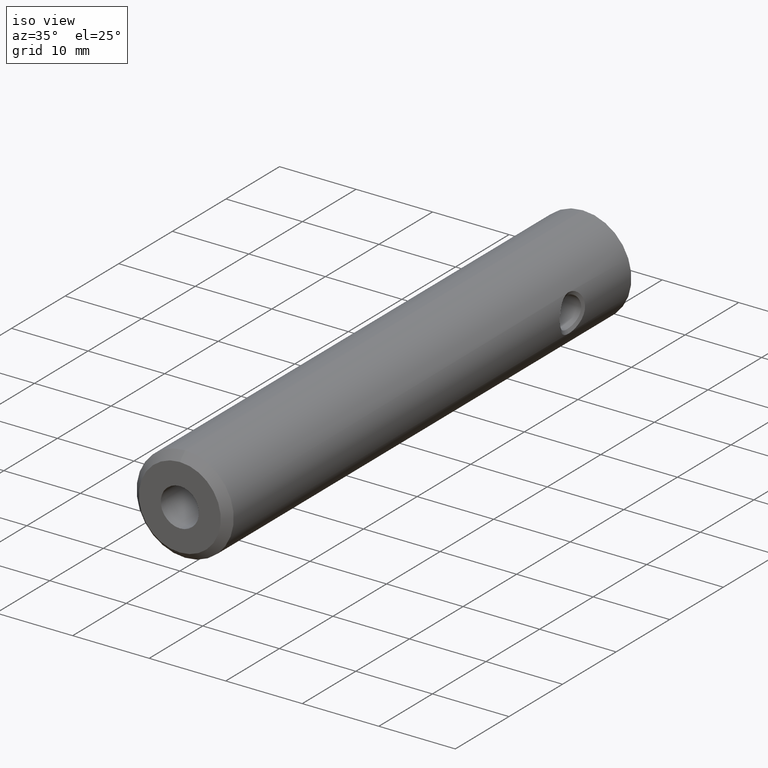
[diagram: clean part render]
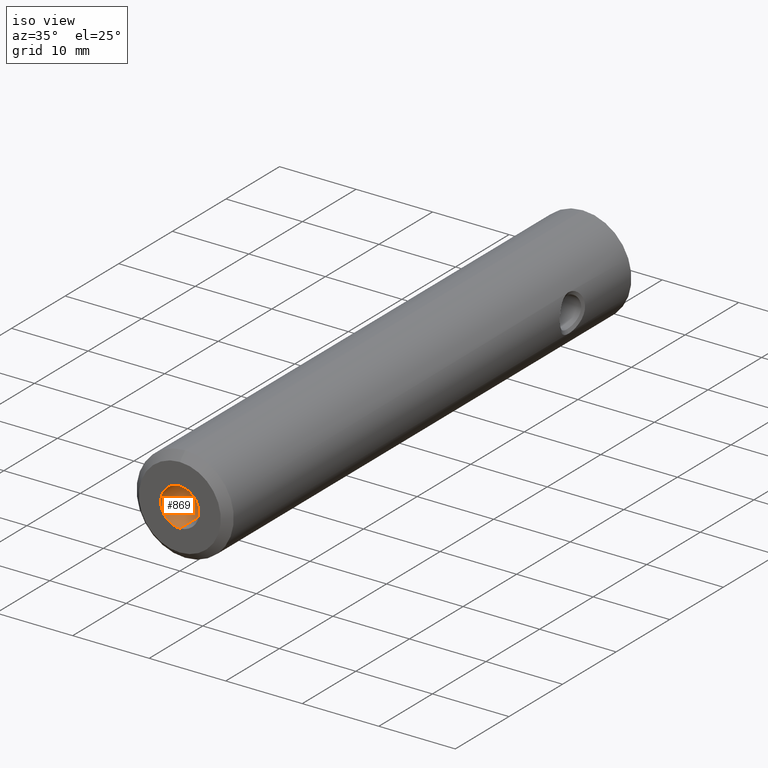
[diagram: same view with one face highlighted and labeled with its STEP entity id]
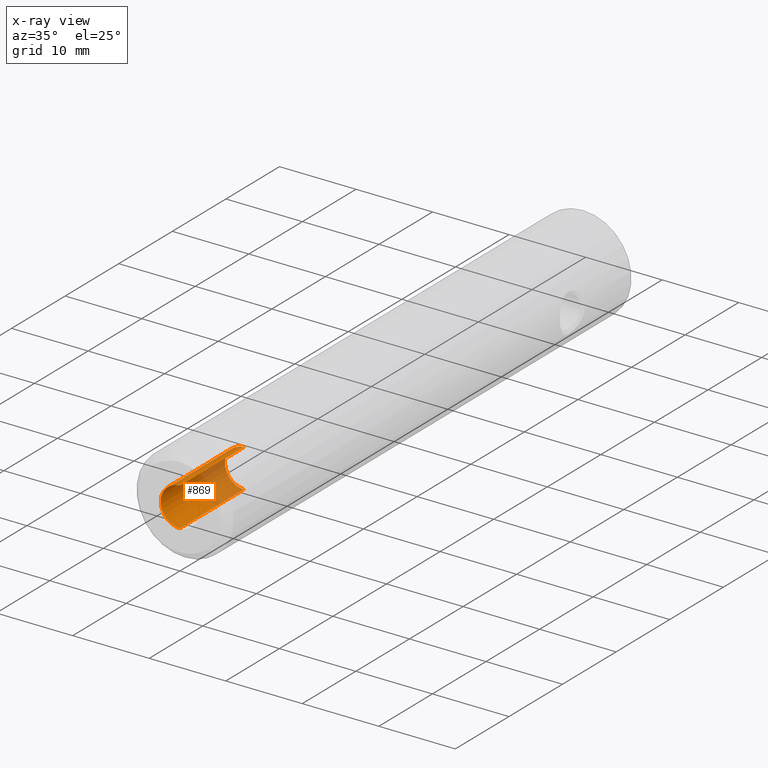
[diagram: x-ray of the same camera — body ghosted, the highlighted face saturated]
A machine part, iso view. The second image highlights one B-rep face of the part: STEP entity #869.
The next image is the same camera in x-ray: the body ghosted, the highlighted face saturated — about 36% of this face is hidden behind the body in this view.
In plain terms, the highlighted cylindrical surface (edge-blend (fillet) strip) has radius 2.5 mm, axis along (-0, -1, -0).
Its self-contained STEP definition (entity closure, byte-faithful):
#7 = AXIS2_PLACEMENT_3D ( 'NONE', #91, #958, #509 ) ;
#66 = DIRECTION ( 'NONE',  ( 0.0000000000000000000, 0.0000000000000000000, -1.000000000000000000 ) ) ;
#79 = AXIS2_PLACEMENT_3D ( 'NONE', #848, #693, #66 ) ;
#91 = CARTESIAN_POINT ( 'NONE',  ( 0.0000000000000000000, 2.479909768273390800E-016, 0.0000000000000000000 ) ) ;
#112 = EDGE_CURVE ( 'NONE', #390, #999, #997, .T. ) ;
#123 = EDGE_CURVE ( 'NONE', #390, #178, #621, .T. ) ;
#147 = VECTOR ( 'NONE', #1002, 1000.000000000000000 ) ;
#157 = ORIENTED_EDGE ( 'NONE', *, *, #112, .F. ) ;
#178 = VERTEX_POINT ( 'NONE', #701 ) ;
#278 = DIRECTION ( 'NONE',  ( 0.0000000000000000000, 0.0000000000000000000, -1.000000000000000000 ) ) ;
#380 = AXIS2_PLACEMENT_3D ( 'NONE', #445, #593, #278 ) ;
#390 = VERTEX_POINT ( 'NONE', #639 ) ;
#420 = CARTESIAN_POINT ( 'NONE',  ( 0.0000000000000000000, 2.479909768273390800E-016, -2.499999999999998700 ) ) ;
#445 = CARTESIAN_POINT ( 'NONE',  ( 0.0000000000000000000, 0.0000000000000000000, 0.0000000000000000000 ) ) ;
#447 = VERTEX_POINT ( 'NONE', #420 ) ;
#466 = CIRCLE ( 'NONE', #7, 2.499999999999998700 ) ;
#505 = EDGE_CURVE ( 'NONE', #178, #447, #466, .T. ) ;
#509 = DIRECTION ( 'NONE',  ( 0.0000000000000000000, 0.0000000000000000000, -1.000000000000000000 ) ) ;
#527 = CYLINDRICAL_SURFACE ( 'NONE', #380, 2.499999999999997800 ) ;
#593 = DIRECTION ( 'NONE',  ( -0.0000000000000000000, -1.000000000000000000, -0.0000000000000000000 ) ) ;
#617 = ORIENTED_EDGE ( 'NONE', *, *, #505, .T. ) ;
#621 = LINE ( 'NONE', #856, #147 ) ;
#622 = EDGE_CURVE ( 'NONE', #999, #447, #810, .T. ) ;
#629 = ORIENTED_EDGE ( 'NONE', *, *, #622, .F. ) ;
#639 = CARTESIAN_POINT ( 'NONE',  ( 3.061616997868380200E-016, 12.00000000000000000, 2.499999999999997300 ) ) ;
#668 = ORIENTED_EDGE ( 'NONE', *, *, #123, .T. ) ;
#670 = VECTOR ( 'NONE', #746, 1000.000000000000000 ) ;
#677 = CARTESIAN_POINT ( 'NONE',  ( 0.0000000000000000000, 0.0000000000000000000, -2.499999999999997800 ) ) ;
#693 = DIRECTION ( 'NONE',  ( -0.0000000000000000000, -1.000000000000000000, -0.0000000000000000000 ) ) ;
#701 = CARTESIAN_POINT ( 'NONE',  ( 3.061616997868382200E-016, 2.479909768273390800E-016, 2.499999999999999100 ) ) ;
#746 = DIRECTION ( 'NONE',  ( -0.0000000000000000000, -1.000000000000000000, -0.0000000000000000000 ) ) ;
#759 = CARTESIAN_POINT ( 'NONE',  ( 0.0000000000000000000, 12.00000000000000000, -2.499999999999997300 ) ) ;
#810 = LINE ( 'NONE', #677, #670 ) ;
#831 = EDGE_LOOP ( 'NONE', ( #157, #668, #617, #629 ) ) ;
#848 = CARTESIAN_POINT ( 'NONE',  ( 0.0000000000000000000, 12.00000000000000000, 0.0000000000000000000 ) ) ;
#856 = CARTESIAN_POINT ( 'NONE',  ( 3.061616997868380700E-016, 0.0000000000000000000, 2.499999999999997800 ) ) ;
#868 = FACE_OUTER_BOUND ( 'NONE', #831, .T. ) ;
#869 = ADVANCED_FACE ( 'NONE', ( #868 ), #527, .F. ) ;
#958 = DIRECTION ( 'NONE',  ( -0.0000000000000000000, -1.000000000000000000, -0.0000000000000000000 ) ) ;
#997 = CIRCLE ( 'NONE', #79, 2.499999999999997300 ) ;
#999 = VERTEX_POINT ( 'NONE', #759 ) ;
#1002 = DIRECTION ( 'NONE',  ( -0.0000000000000000000, -1.000000000000000000, -0.0000000000000000000 ) ) ;